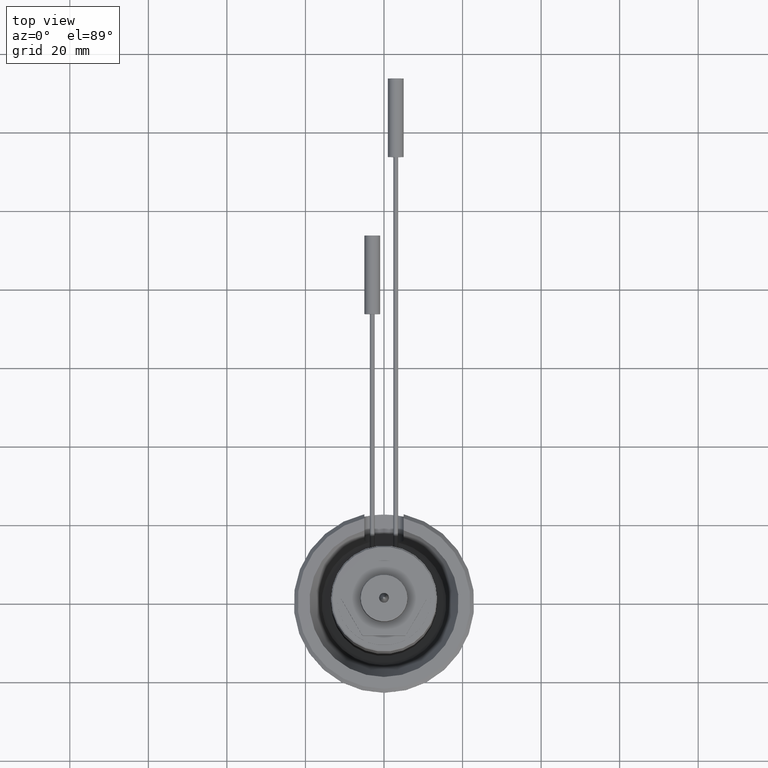
[diagram: clean part render]
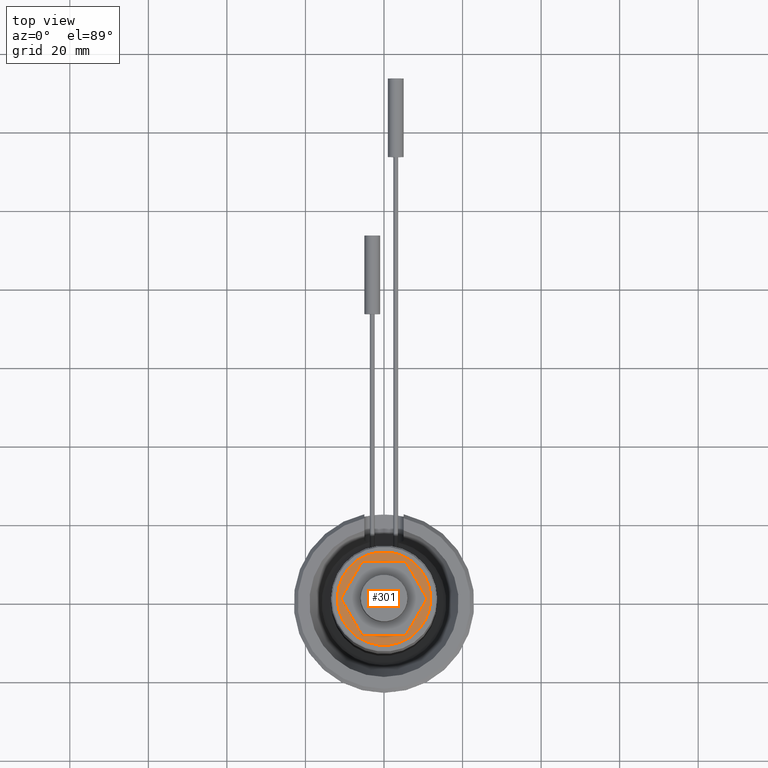
[diagram: same view with one face highlighted and labeled with its STEP entity id]
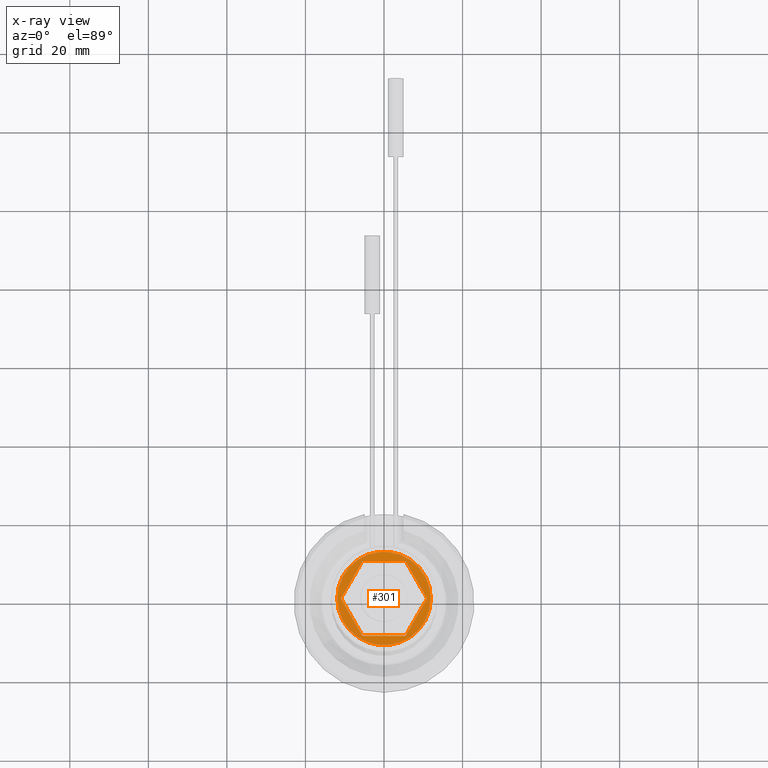
[diagram: x-ray of the same camera — body ghosted, the highlighted face saturated]
A machine part, top view. The second image highlights one B-rep face of the part: STEP entity #301.
The next image is the same camera in x-ray: the body ghosted, the highlighted face saturated — about 0% of this face is hidden behind the body in this view.
In plain terms, the highlighted planar face has unit normal (0, 0, -1).
Its self-contained STEP definition (entity closure, byte-faithful):
#57=LINE('',#1874,#101);
#58=LINE('',#1875,#102);
#59=LINE('',#1876,#103);
#60=LINE('',#1877,#104);
#61=LINE('',#1878,#105);
#62=LINE('',#1879,#106);
#101=VECTOR('',#1401,1.);
#102=VECTOR('',#1402,1.);
#103=VECTOR('',#1403,1.);
#104=VECTOR('',#1404,1.);
#105=VECTOR('',#1405,1.);
#106=VECTOR('',#1406,1.);
#206=PLANE('',#1166);
#301=ADVANCED_FACE('',(#394,#395),#206,.F.);
#394=FACE_BOUND('',#472,.T.);
#395=FACE_BOUND('',#473,.T.);
#472=EDGE_LOOP('',(#638,#639,#640,#641,#642,#643,#644,#645,#646,#647,#648,
#649));
#473=EDGE_LOOP('',(#650));
#638=ORIENTED_EDGE('',*,*,#937,.F.);
#639=ORIENTED_EDGE('',*,*,#982,.T.);
#640=ORIENTED_EDGE('',*,*,#945,.F.);
#641=ORIENTED_EDGE('',*,*,#983,.T.);
#642=ORIENTED_EDGE('',*,*,#942,.F.);
#643=ORIENTED_EDGE('',*,*,#984,.T.);
#644=ORIENTED_EDGE('',*,*,#939,.F.);
#645=ORIENTED_EDGE('',*,*,#985,.T.);
#646=ORIENTED_EDGE('',*,*,#933,.F.);
#647=ORIENTED_EDGE('',*,*,#986,.T.);
#648=ORIENTED_EDGE('',*,*,#931,.F.);
#649=ORIENTED_EDGE('',*,*,#987,.T.);
#650=ORIENTED_EDGE('',*,*,#981,.T.);
#831=VERTEX_POINT('',#1683);
#832=VERTEX_POINT('',#1685);
#833=VERTEX_POINT('',#1689);
#834=VERTEX_POINT('',#1691);
#835=VERTEX_POINT('',#1695);
#836=VERTEX_POINT('',#1697);
#837=VERTEX_POINT('',#1701);
#838=VERTEX_POINT('',#1703);
#839=VERTEX_POINT('',#1707);
#840=VERTEX_POINT('',#1709);
#841=VERTEX_POINT('',#1713);
#842=VERTEX_POINT('',#1715);
#874=VERTEX_POINT('',#1872);
#931=EDGE_CURVE('',#832,#831,#1051,.T.);
#933=EDGE_CURVE('',#833,#834,#1052,.T.);
#937=EDGE_CURVE('',#836,#835,#1053,.T.);
#939=EDGE_CURVE('',#837,#838,#1054,.T.);
#942=EDGE_CURVE('',#839,#840,#1055,.T.);
#945=EDGE_CURVE('',#841,#842,#1056,.T.);
#981=EDGE_CURVE('',#874,#874,#1073,.T.);
#982=EDGE_CURVE('',#836,#842,#57,.T.);
#983=EDGE_CURVE('',#841,#840,#58,.T.);
#984=EDGE_CURVE('',#839,#838,#59,.T.);
#985=EDGE_CURVE('',#837,#834,#60,.T.);
#986=EDGE_CURVE('',#833,#831,#61,.T.);
#987=EDGE_CURVE('',#832,#835,#62,.T.);
#1051=CIRCLE('',#1129,10.9);
#1052=CIRCLE('',#1131,10.9);
#1053=CIRCLE('',#1133,10.9);
#1054=CIRCLE('',#1135,10.9);
#1055=CIRCLE('',#1137,10.9);
#1056=CIRCLE('',#1139,10.9);
#1073=CIRCLE('',#1164,11.9);
#1129=AXIS2_PLACEMENT_3D('',#1686,#1307,#1308);
#1131=AXIS2_PLACEMENT_3D('',#1690,#1312,#1313);
#1133=AXIS2_PLACEMENT_3D('',#1698,#1319,#1320);
#1135=AXIS2_PLACEMENT_3D('',#1702,#1324,#1325);
#1137=AXIS2_PLACEMENT_3D('',#1708,#1330,#1331);
#1139=AXIS2_PLACEMENT_3D('',#1714,#1336,#1337);
#1164=AXIS2_PLACEMENT_3D('',#1871,#1397,#1398);
#1166=AXIS2_PLACEMENT_3D('',#1880,#1407,#1408);
#1307=DIRECTION('',(0.,0.,1.));
#1308=DIRECTION('',(1.,0.,0.));
#1312=DIRECTION('',(0.,0.,1.));
#1313=DIRECTION('',(1.,0.,0.));
#1319=DIRECTION('',(0.,0.,1.));
#1320=DIRECTION('',(1.,0.,0.));
#1324=DIRECTION('',(0.,0.,1.));
#1325=DIRECTION('',(1.,0.,0.));
#1330=DIRECTION('',(0.,0.,1.));
#1331=DIRECTION('',(1.,0.,0.));
#1336=DIRECTION('',(0.,0.,1.));
#1337=DIRECTION('',(1.,0.,0.));
#1397=DIRECTION('',(0.,0.,1.));
#1398=DIRECTION('',(1.,0.,0.));
#1401=DIRECTION('',(1.,0.,0.));
#1402=DIRECTION('',(0.500000000000001,-0.866025403784438,0.));
#1403=DIRECTION('',(-0.499999999999999,-0.866025403784439,0.));
#1404=DIRECTION('',(-1.,-2.27221380597914E-15,0.));
#1405=DIRECTION('',(-0.500000000000003,0.866025403784437,0.));
#1406=DIRECTION('',(0.499999999999996,0.866025403784441,0.));
#1407=DIRECTION('',(0.,0.,-1.));
#1408=DIRECTION('',(-1.,0.,0.));
#1683=CARTESIAN_POINT('',(-10.8993191791296,-0.121825413837578,80.5));
#1685=CARTESIAN_POINT('',(-10.8993191791296,0.121825413837501,80.5));
#1686=CARTESIAN_POINT('',(0.,0.,80.5));
#1689=CARTESIAN_POINT('',(-5.55516349277466,-9.37817458616247,80.5));
#1690=CARTESIAN_POINT('',(0.,0.,80.5));
#1691=CARTESIAN_POINT('',(-5.34415568635493,-9.50000000000001,80.5));
#1695=CARTESIAN_POINT('',(-5.55516349277473,9.37817458616243,80.5));
#1697=CARTESIAN_POINT('',(-5.34415568635495,9.5,80.5));
#1698=CARTESIAN_POINT('',(0.,0.,80.5));
#1701=CARTESIAN_POINT('',(5.34415568635498,-9.49999999999999,80.5));
#1702=CARTESIAN_POINT('',(0.,0.,80.5));
#1703=CARTESIAN_POINT('',(5.5551634927747,-9.37817458616245,80.5));
#1707=CARTESIAN_POINT('',(10.8993191791296,-0.121825413837527,80.5));
#1708=CARTESIAN_POINT('',(0.,0.,80.5));
#1709=CARTESIAN_POINT('',(10.8993191791296,0.121825413837552,80.5));
#1713=CARTESIAN_POINT('',(5.55516349277468,9.37817458616246,80.5));
#1714=CARTESIAN_POINT('',(0.,0.,80.5));
#1715=CARTESIAN_POINT('',(5.34415568635496,9.5,80.5));
#1871=CARTESIAN_POINT('',(0.,0.,80.5));
#1872=CARTESIAN_POINT('',(11.9,0.,80.5));
#1874=CARTESIAN_POINT('',(-5.34415568635496,9.5,80.5));
#1875=CARTESIAN_POINT('',(5.55516349277468,9.37817458616246,80.5));
#1876=CARTESIAN_POINT('',(10.8993191791296,-0.121825413837527,80.5));
#1877=CARTESIAN_POINT('',(5.34415568635498,-9.49999999999999,80.5));
#1878=CARTESIAN_POINT('',(-5.55516349277466,-9.37817458616247,80.5));
#1879=CARTESIAN_POINT('',(-10.8993191791296,0.121825413837499,80.5));
#1880=CARTESIAN_POINT('',(-11.9,0.,80.5));